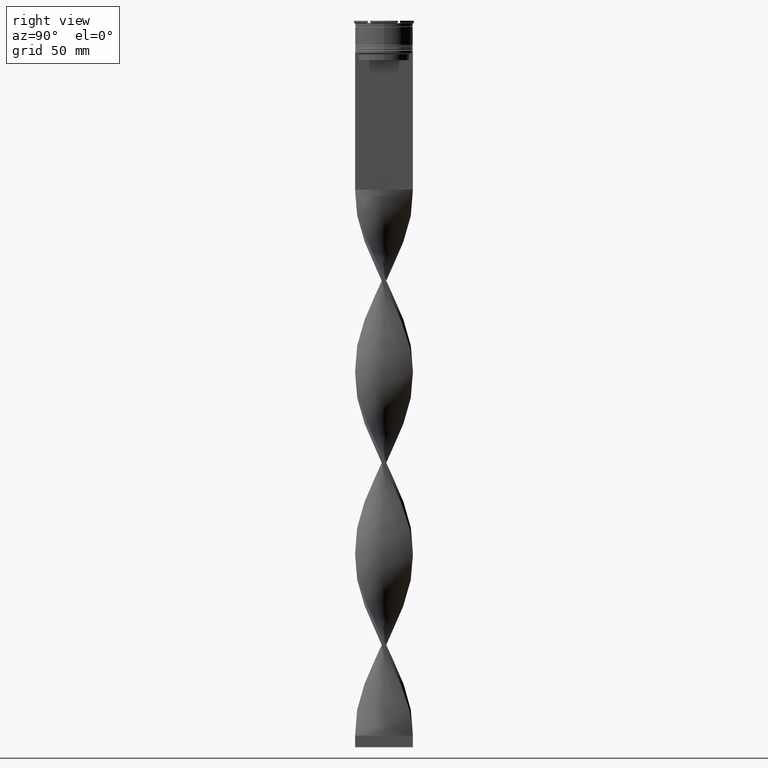
[diagram: clean part render]
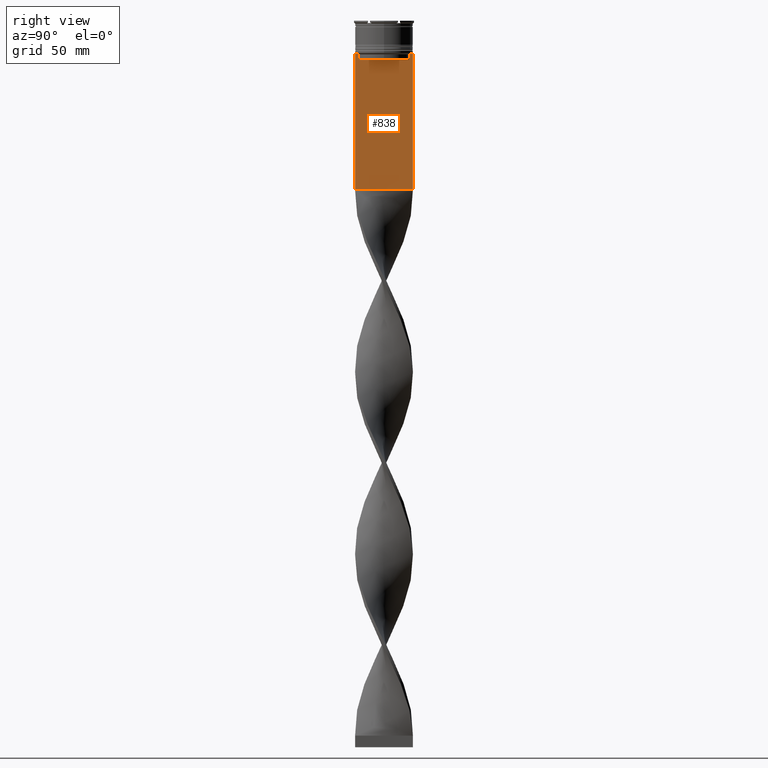
[diagram: same view with one face highlighted and labeled with its STEP entity id]
A machine part, right view. The second image highlights one B-rep face of the part: STEP entity #838.
In plain terms, the highlighted planar face has unit normal (-1, 0, 0).
Its self-contained STEP definition (entity closure, byte-faithful):
#34 = ORIENTED_EDGE ( 'NONE', *, *, #3077, .T. ) ;
#111 = VECTOR ( 'NONE', #2852, 1000.000000000000000 ) ;
#157 = LINE ( 'NONE', #1245, #2725 ) ;
#223 = EDGE_CURVE ( 'NONE', #530, #1182, #2540, .T. ) ;
#251 = EDGE_CURVE ( 'NONE', #840, #3129, #157, .T. ) ;
#270 = EDGE_CURVE ( 'NONE', #2323, #3965, #2318, .T. ) ;
#294 = DIRECTION ( 'NONE',  ( 0.000000000000000000, 0.000000000000000000, -1.000000000000000000 ) ) ;
#295 = CARTESIAN_POINT ( 'NONE',  ( 0.7500000000000002220, -11.20826532207830439, -14.16667499063191826 ) ) ;
#300 = CARTESIAN_POINT ( 'NONE',  ( 0.7500000000000002220, -12.50000000000000000, -73.00000000000001421 ) ) ;
#311 = VERTEX_POINT ( 'NONE', #649 ) ;
#339 = ORIENTED_EDGE ( 'NONE', *, *, #2595, .T. ) ;
#481 = ORIENTED_EDGE ( 'NONE', *, *, #251, .T. ) ;
#492 = EDGE_LOOP ( 'NONE', ( #4502, #3698, #1906, #339, #701, #1117, #1299, #1301, #3987, #481, #2634, #34 ) ) ;
#530 = VERTEX_POINT ( 'NONE', #4226 ) ;
#649 = CARTESIAN_POINT ( 'NONE',  ( 0.7500000000000002220, 10.87416663473574197, -14.50000000000000000 ) ) ;
#686 = CARTESIAN_POINT ( 'NONE',  ( 0.7500000000000002220, 11.37530219378809093, -14.00000000000000178 ) ) ;
#701 = ORIENTED_EDGE ( 'NONE', *, *, #3108, .T. ) ;
#819 = DIRECTION ( 'NONE',  ( 0.000000000000000000, -1.000000000000000000, 0.000000000000000000 ) ) ;
#832 = DIRECTION ( 'NONE',  ( 0.000000000000000000, -1.000000000000000000, 0.000000000000000000 ) ) ;
#835 = CARTESIAN_POINT ( 'NONE',  ( 0.7500000000000002220, 11.20826531587977648, -14.16667499681701514 ) ) ;
#838 = ADVANCED_FACE ( 'NONE', ( #3224 ), #1486, .F. ) ;
#840 = VERTEX_POINT ( 'NONE', #300 ) ;
#884 = CARTESIAN_POINT ( 'NONE',  ( 0.7500000000000002220, 10.87416663473574197, -14.50000000000000000 ) ) ;
#973 = CARTESIAN_POINT ( 'NONE',  ( 0.7500000000000002220, 10.87416663473574019, -17.00000000000000000 ) ) ;
#979 = DIRECTION ( 'NONE',  ( 0.000000000000000000, 1.000000000000000000, 0.000000000000000000 ) ) ;
#1104 = CARTESIAN_POINT ( 'NONE',  ( 0.7500000000000002220, 10.87416663473574197, 0.000000000000000000 ) ) ;
#1117 = ORIENTED_EDGE ( 'NONE', *, *, #4416, .T. ) ;
#1182 = VERTEX_POINT ( 'NONE', #4259 ) ;
#1195 = VECTOR ( 'NONE', #819, 1000.000000000000000 ) ;
#1238 = CARTESIAN_POINT ( 'NONE',  ( 0.7500000000000002220, -10.87416663473574197, -14.50000000000000000 ) ) ;
#1245 = CARTESIAN_POINT ( 'NONE',  ( 0.7500000000000002220, -12.50000000000000000, -73.00000000000001421 ) ) ;
#1299 = ORIENTED_EDGE ( 'NONE', *, *, #223, .T. ) ;
#1301 = ORIENTED_EDGE ( 'NONE', *, *, #4189, .T. ) ;
#1314 = VERTEX_POINT ( 'NONE', #3291 ) ;
#1390 = EDGE_CURVE ( 'NONE', #1314, #3129, #2490, .T. ) ;
#1486 = PLANE ( 'NONE',  #2864 ) ;
#1525 = CARTESIAN_POINT ( 'NONE',  ( 0.7500000000000002220, -12.50000000000000000, -14.00000000000000178 ) ) ;
#1529 = CARTESIAN_POINT ( 'NONE',  ( 0.7500000000000002220, 11.37530219378809093, -14.00000000000000178 ) ) ;
#1537 = VECTOR ( 'NONE', #3355, 1000.000000000000000 ) ;
#1668 = CARTESIAN_POINT ( 'NONE',  ( 0.7500000000000002220, 10.90000000000000213, -17.00000000000000000 ) ) ;
#1669 = CARTESIAN_POINT ( 'NONE',  ( 0.7500000000000002220, -11.37530219378809093, -14.00000000000000178 ) ) ;
#1700 = CARTESIAN_POINT ( 'NONE',  ( 0.7500000000000002220, 12.50000000000000000, 11.04495957273638673 ) ) ;
#1733 = EDGE_CURVE ( 'NONE', #3965, #311, #3023, .T. ) ;
#1774 = VECTOR ( 'NONE', #2472, 1000.000000000000000 ) ;
#1899 = CARTESIAN_POINT ( 'NONE',  ( 0.7500000000000002220, 11.04122051153452055, -14.33334204648729404 ) ) ;
#1906 = ORIENTED_EDGE ( 'NONE', *, *, #4238, .T. ) ;
#1959 = CARTESIAN_POINT ( 'NONE',  ( 0.7500000000000002220, -12.50000000000000000, -14.00000000000000178 ) ) ;
#1970 = CARTESIAN_POINT ( 'NONE',  ( 0.7500000000000002220, -11.04122051801870441, -14.33334204001847567 ) ) ;
#1982 = VECTOR ( 'NONE', #3868, 1000.000000000000000 ) ;
#1997 = DIRECTION ( 'NONE',  ( 0.000000000000000000, 0.000000000000000000, 1.000000000000000000 ) ) ;
#2042 = CARTESIAN_POINT ( 'NONE',  ( 0.7500000000000002220, -12.50000000000000000, -14.00000000000000178 ) ) ;
#2130 = LINE ( 'NONE', #3488, #1982 ) ;
#2210 = VERTEX_POINT ( 'NONE', #1525 ) ;
#2318 = LINE ( 'NONE', #2042, #3749 ) ;
#2323 = VERTEX_POINT ( 'NONE', #4088 ) ;
#2341 = B_SPLINE_CURVE_WITH_KNOTS ( 'NONE', 3,
 ( #2625, #1970, #295, #1669 ),
 .UNSPECIFIED., .F., .F.,
 ( 4, 4 ),
 ( 0.05009718908159448147, 0.05081156920313959630 ),
 .UNSPECIFIED. ) ;
#2369 = VECTOR ( 'NONE', #4172, 1000.000000000000000 ) ;
#2472 = DIRECTION ( 'NONE',  ( 0.000000000000000000, 0.000000000000000000, -1.000000000000000000 ) ) ;
#2490 = LINE ( 'NONE', #1700, #1774 ) ;
#2540 = LINE ( 'NONE', #4294, #1195 ) ;
#2541 = EDGE_CURVE ( 'NONE', #2210, #840, #3457, .T. ) ;
#2595 = EDGE_CURVE ( 'NONE', #3803, #3922, #3436, .T. ) ;
#2625 = CARTESIAN_POINT ( 'NONE',  ( 0.7500000000000002220, -10.87416663473574197, -14.50000000000000000 ) ) ;
#2634 = ORIENTED_EDGE ( 'NONE', *, *, #1390, .F. ) ;
#2725 = VECTOR ( 'NONE', #979, 1000.000000000000000 ) ;
#2839 = CARTESIAN_POINT ( 'NONE',  ( 0.7500000000000002220, 12.50000000000000000, -73.00000000000001421 ) ) ;
#2852 = DIRECTION ( 'NONE',  ( 0.000000000000000000, 0.000000000000000000, -1.000000000000000000 ) ) ;
#2864 = AXIS2_PLACEMENT_3D ( 'NONE', #2977, #3420, #1997 ) ;
#2945 = LINE ( 'NONE', #1104, #111 ) ;
#2977 = CARTESIAN_POINT ( 'NONE',  ( 0.7500000000000002220, -12.50000000000000000, 11.04495957273638673 ) ) ;
#3023 = B_SPLINE_CURVE_WITH_KNOTS ( 'NONE', 3,
 ( #1529, #835, #1899, #884 ),
 .UNSPECIFIED., .F., .F.,
 ( 4, 4 ),
 ( 0.01936090553552769281, 0.02006881572333104116 ),
 .UNSPECIFIED. ) ;
#3077 = EDGE_CURVE ( 'NONE', #1314, #2323, #4077, .T. ) ;
#3108 = EDGE_CURVE ( 'NONE', #3922, #4376, #2130, .T. ) ;
#3129 = VERTEX_POINT ( 'NONE', #2839 ) ;
#3224 = FACE_OUTER_BOUND ( 'NONE', #492, .T. ) ;
#3291 = CARTESIAN_POINT ( 'NONE',  ( 0.7500000000000002220, 12.50000000000000000, -14.00000000000000178 ) ) ;
#3353 = DIRECTION ( 'NONE',  ( 0.000000000000000000, -1.000000000000000000, 0.000000000000000000 ) ) ;
#3355 = DIRECTION ( 'NONE',  ( 0.000000000000000000, -1.000000000000000000, 0.000000000000000000 ) ) ;
#3420 = DIRECTION ( 'NONE',  ( -1.000000000000000000, 0.000000000000000000, 0.000000000000000000 ) ) ;
#3436 = LINE ( 'NONE', #1668, #2369 ) ;
#3457 = LINE ( 'NONE', #3494, #4332 ) ;
#3488 = CARTESIAN_POINT ( 'NONE',  ( 0.7500000000000002220, -10.87416663473574197, 0.000000000000000000 ) ) ;
#3494 = CARTESIAN_POINT ( 'NONE',  ( 0.7500000000000002220, -12.50000000000000000, 11.04495957273638673 ) ) ;
#3693 = VECTOR ( 'NONE', #832, 1000.000000000000000 ) ;
#3698 = ORIENTED_EDGE ( 'NONE', *, *, #1733, .T. ) ;
#3749 = VECTOR ( 'NONE', #3353, 1000.000000000000000 ) ;
#3803 = VERTEX_POINT ( 'NONE', #973 ) ;
#3868 = DIRECTION ( 'NONE',  ( -0.000000000000000000, -0.000000000000000000, 1.000000000000000000 ) ) ;
#3909 = CARTESIAN_POINT ( 'NONE',  ( 0.7500000000000002220, -12.50000000000000000, -14.00000000000000178 ) ) ;
#3922 = VERTEX_POINT ( 'NONE', #4000 ) ;
#3965 = VERTEX_POINT ( 'NONE', #686 ) ;
#3987 = ORIENTED_EDGE ( 'NONE', *, *, #2541, .T. ) ;
#4000 = CARTESIAN_POINT ( 'NONE',  ( 0.7500000000000002220, -10.87416663473574019, -17.00000000000000000 ) ) ;
#4077 = LINE ( 'NONE', #1959, #1537 ) ;
#4088 = CARTESIAN_POINT ( 'NONE',  ( 0.7500000000000002220, 12.37729776647553059, -14.00000000000000178 ) ) ;
#4172 = DIRECTION ( 'NONE',  ( 0.000000000000000000, -1.000000000000000000, 0.000000000000000000 ) ) ;
#4189 = EDGE_CURVE ( 'NONE', #1182, #2210, #4307, .T. ) ;
#4226 = CARTESIAN_POINT ( 'NONE',  ( 0.7500000000000002220, -11.37530219378809093, -14.00000000000000178 ) ) ;
#4238 = EDGE_CURVE ( 'NONE', #311, #3803, #2945, .T. ) ;
#4259 = CARTESIAN_POINT ( 'NONE',  ( 0.7500000000000002220, -12.37729776647553059, -14.00000000000000178 ) ) ;
#4294 = CARTESIAN_POINT ( 'NONE',  ( 0.7500000000000002220, -12.50000000000000000, -14.00000000000000178 ) ) ;
#4307 = LINE ( 'NONE', #3909, #3693 ) ;
#4332 = VECTOR ( 'NONE', #294, 1000.000000000000000 ) ;
#4376 = VERTEX_POINT ( 'NONE', #1238 ) ;
#4416 = EDGE_CURVE ( 'NONE', #4376, #530, #2341, .T. ) ;
#4502 = ORIENTED_EDGE ( 'NONE', *, *, #270, .T. ) ;